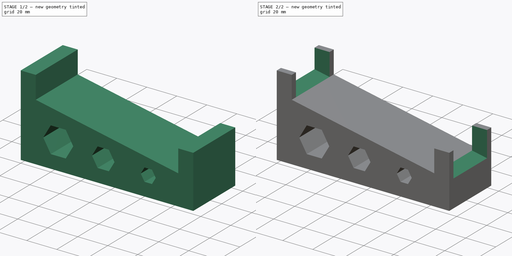
[diagram: build sequence overview — one tinted view per stage of 2, left to right]
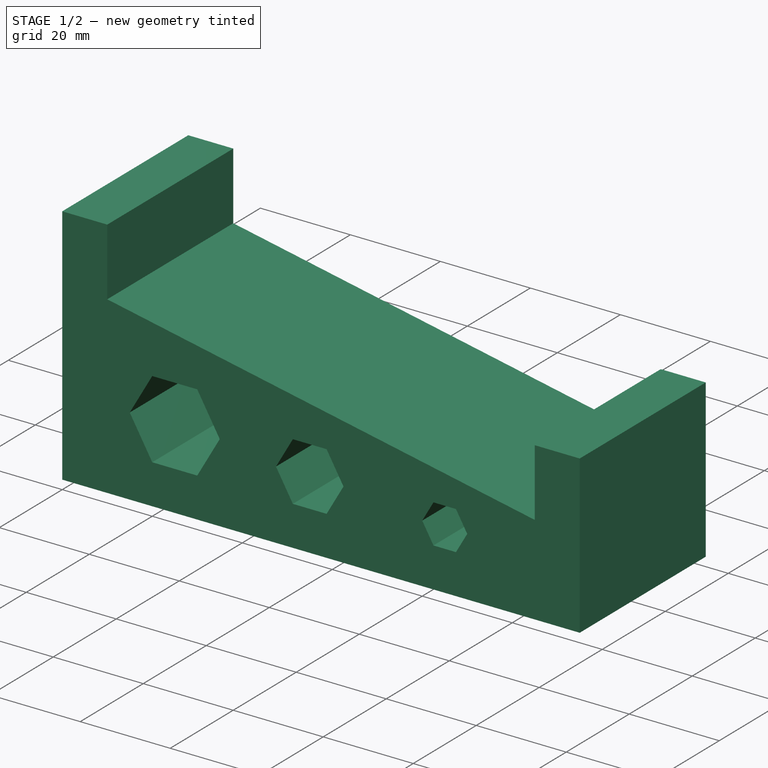
[diagram: stage 1 of 2 — iso view after this stage's code; geometry added in this stage tinted green]
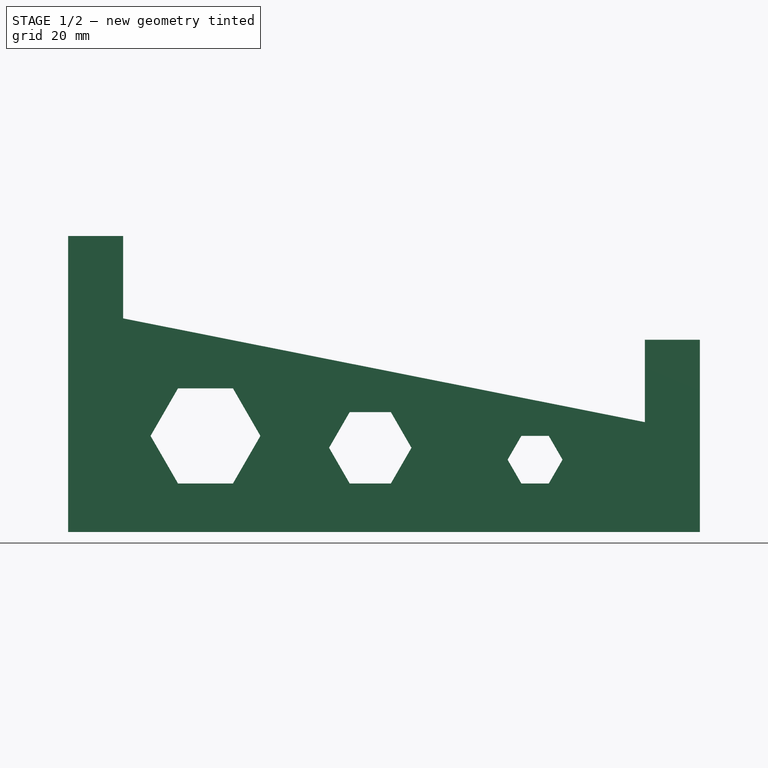
[diagram: stage 1 of 2 — front view after this stage's code; geometry added in this stage tinted green]
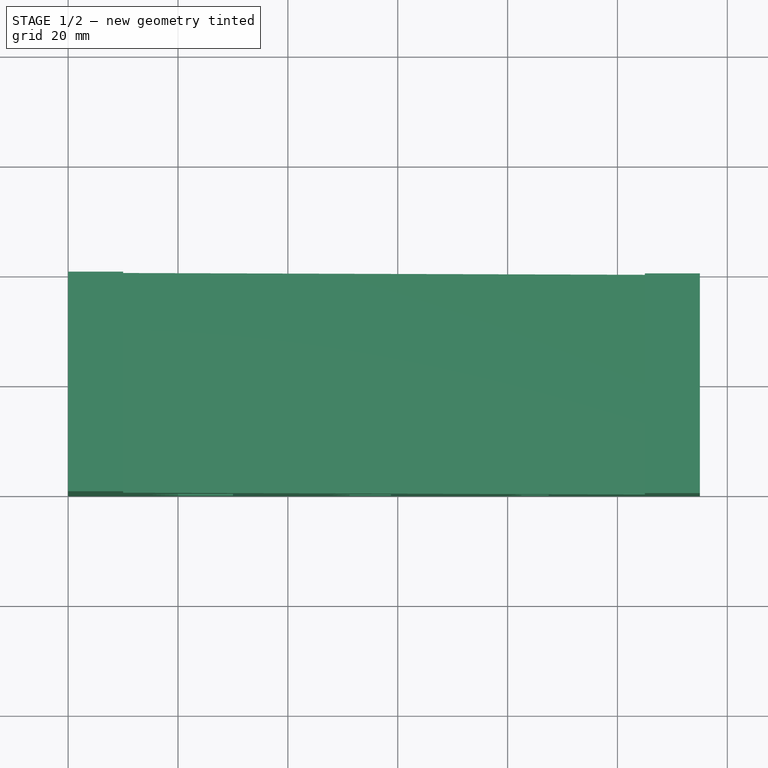
[diagram: stage 1 of 2 — top view after this stage's code; geometry added in this stage tinted green]
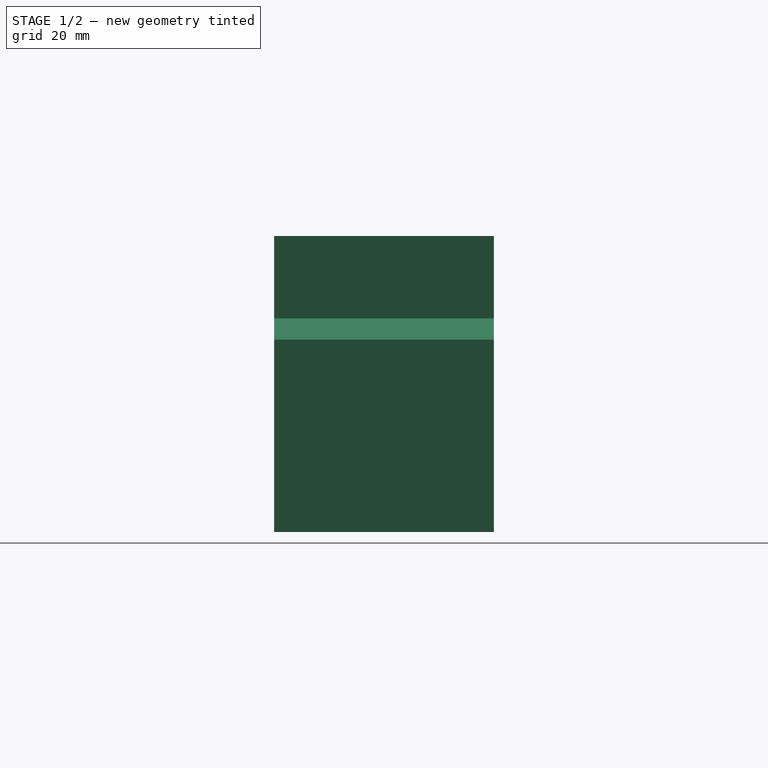
[diagram: stage 1 of 2 — right view after this stage's code; geometry added in this stage tinted green]
FCSTD DOCUMENT  (FreeCAD 0.21R33668 +26 (Git))
Label: stand
License: All rights reserved
LicenseURL: https://en.wikipedia.org/wiki/All_rights_reserved
objects: Sketcher::SketchObject×2, PartDesign::Pad×1, PartDesign::Pocket×1, PartDesign::Body×1
note: 7 computed .brp shape members not serialized (recipe doc carries the construction recipe); baked Part::Feature solids carry a one-line shape summary decoded from their .brp

FEATURE [Sketcher::SketchObject] Sketch
  FullyConstrained = true
  MapMode = 5
  Placement = pos=(0,0,0) rot=(1,0,0;1.5708rad)
  Support = -> [XZ_Plane]
  sketch-geometry (29):
    g0: LineSegment StartX=0 StartY=0 StartZ=0 EndX=0 EndY=53.8967 EndZ=0
    g1: LineSegment StartX=0 StartY=53.8967 StartZ=0 EndX=10 EndY=53.8967 EndZ=0
    g2: LineSegment StartX=10 StartY=53.8967 StartZ=0 EndX=10 EndY=38.8967 EndZ=0
    g3: LineSegment StartX=10 StartY=38.8967 StartZ=0 EndX=105 EndY=20 EndZ=0
    g4: LineSegment StartX=105 StartY=20 StartZ=0 EndX=105 EndY=35 EndZ=0
    g5: LineSegment StartX=105 StartY=35 StartZ=0 EndX=115 EndY=35 EndZ=0
    g6: LineSegment StartX=115 StartY=35 StartZ=0 EndX=115 EndY=0 EndZ=0
    g7: LineSegment StartX=115 StartY=0 StartZ=0 EndX=0 EndY=0 EndZ=0
    g8: LineSegment StartX=30 StartY=8.83975 StartZ=0 EndX=35 EndY=17.5 EndZ=0
    g9: LineSegment StartX=35 StartY=17.5 StartZ=0 EndX=30 EndY=26.1603 EndZ=0
    g10: LineSegment StartX=30 StartY=26.1603 StartZ=0 EndX=20 EndY=26.1603 EndZ=0
    g11: LineSegment StartX=20 StartY=26.1603 StartZ=0 EndX=15 EndY=17.5 EndZ=0
    g12: LineSegment StartX=15 StartY=17.5 StartZ=0 EndX=20 EndY=8.83975 EndZ=0
    g13: LineSegment StartX=20 StartY=8.83975 StartZ=0 EndX=30 EndY=8.83975 EndZ=0
    g14: Circle CenterX=25 CenterY=17.5 CenterZ=0 NormalX=0 NormalY=0 NormalZ=1 AngleXU=0 Radius=10
    g15: LineSegment StartX=58.75 StartY=8.83975 StartZ=0 EndX=62.5 EndY=15.3349 EndZ=0
    g16: LineSegment StartX=62.5 StartY=15.3349 StartZ=0 EndX=58.75 EndY=21.8301 EndZ=0
    g17: LineSegment StartX=58.75 StartY=21.8301 StartZ=0 EndX=51.25 EndY=21.8301 EndZ=0
    g18: LineSegment StartX=51.25 StartY=21.8301 StartZ=0 EndX=47.5 EndY=15.3349 EndZ=0
    g19: LineSegment StartX=47.5 StartY=15.3349 StartZ=0 EndX=51.25 EndY=8.83975 EndZ=0
    g20: LineSegment StartX=51.25 StartY=8.83975 StartZ=0 EndX=58.75 EndY=8.83975 EndZ=0
    g21: Circle CenterX=55 CenterY=15.3349 CenterZ=0 NormalX=0 NormalY=0 NormalZ=1 AngleXU=0 Radius=7.5
    g22: LineSegment StartX=87.5 StartY=8.83975 StartZ=0 EndX=90 EndY=13.1699 EndZ=0
    g23: LineSegment StartX=90 StartY=13.1699 StartZ=0 EndX=87.5 EndY=17.5 EndZ=0
    g24: LineSegment StartX=87.5 StartY=17.5 StartZ=0 EndX=82.5 EndY=17.5 EndZ=0
    g25: LineSegment StartX=82.5 StartY=17.5 StartZ=0 EndX=80 EndY=13.1699 EndZ=0
    g26: LineSegment StartX=80 StartY=13.1699 StartZ=0 EndX=82.5 EndY=8.83975 EndZ=0
    g27: LineSegment StartX=82.5 StartY=8.83975 StartZ=0 EndX=87.5 EndY=8.83975 EndZ=0
    g28: Circle CenterX=85 CenterY=13.1699 CenterZ=0 NormalX=0 NormalY=0 NormalZ=1 AngleXU=0 Radius=5
  constraints (74):
    c: PointOnObject(g0,g-2)
    c: Coincident(g0,g1)
    c: Horizontal(g1)
    c: Coincident(g1,g2)
    c: Vertical(g2)
    c: Coincident(g2,g3)
    c: Coincident(g3,g4)
    c: Vertical(g4)
    c: Coincident(g4,g5)
    c: Horizontal(g5)
    c: Coincident(g5,g6)
    c: PointOnObject(g6,g-1)
    c: Vertical(g6)
    c: Coincident(g6,g7)
    c: Angle(g3,g-1) = 0.19635
    c: DistanceX(g2,g3) = 95
    c: DistanceX(g5,g5) = 10
    c: DistanceX(g1,g1) = 10
    c: DistanceY(g6,g3) = 20
    c: DistanceY(g4,g4) = 15
    c: DistanceY(g2,g2) = 15
    c: Coincident(g8,g9)
    c: Coincident(g9,g10)
    c: Coincident(g10,g11)
    c: Coincident(g11,g12)
    c: Coincident(g12,g13)
    c: Coincident(g13,g8)
    c: Equal(g8, g9-g13) x5
    c: PointOnObject(g8,g14)
    c: PointOnObject(g9,g14)
    c: PointOnObject(g10,g14)
    c: PointOnObject(g11,g14)
    c: PointOnObject(g12,g14)
    c: PointOnObject(g13,g14)
    c: Horizontal(g13)
    c: DistanceX(g0,g14) = 25
    c: Coincident(g0,g7)
    c: Coincident(g0,g-1)
    c: DistanceY(g0,g14) = 17.5
    c: Radius(g14) = 10
    c: Coincident(g15,g16)
    c: Coincident(g16,g17)
    c: Coincident(g17,g18)
    c: Coincident(g18,g19)
    c: Coincident(g19,g20)
    c: Coincident(g20,g15)
    c: Equal(g15, g16-g20) x5
    c: PointOnObject(g15,g21)
    c: PointOnObject(g16,g21)
    c: PointOnObject(g17,g21)
    c: PointOnObject(g18,g21)
    c: PointOnObject(g19,g21)
    c: PointOnObject(g20,g21)
    c: Horizontal(g20)
    c: DistanceY(g8,g19) = 0
    c: DistanceX(g14,g21) = 30
    c: Radius(g21) = 7.5
    c: Coincident(g22,g23)
    c: Coincident(g23,g24)
    c: Coincident(g24,g25)
    c: Coincident(g25,g26)
    c: Coincident(g26,g27)
    c: Coincident(g27,g22)
    c: Equal(g22, g23-g27) x5
    c: PointOnObject(g22,g28)
    c: PointOnObject(g23,g28)
    c: PointOnObject(g24,g28)
    c: PointOnObject(g25,g28)
    c: PointOnObject(g26,g28)
    c: PointOnObject(g27,g28)
    c: Horizontal(g27)
    c: DistanceY(g26,g15) = 0
    c: Radius(g28) = 5
    c: DistanceX(g21,g28) = 30
FEATURE [PartDesign::Pad] Pad
  Direction = (0,-1,-2e-16)
  Length = 40
  Length2 = 10
  Placement = pos=(0,0,0) rot=(1,0,0;1.5708rad)
  Profile = -> Sketch
  ReferenceAxis = -> Sketch [N_Axis]
  Type = 0
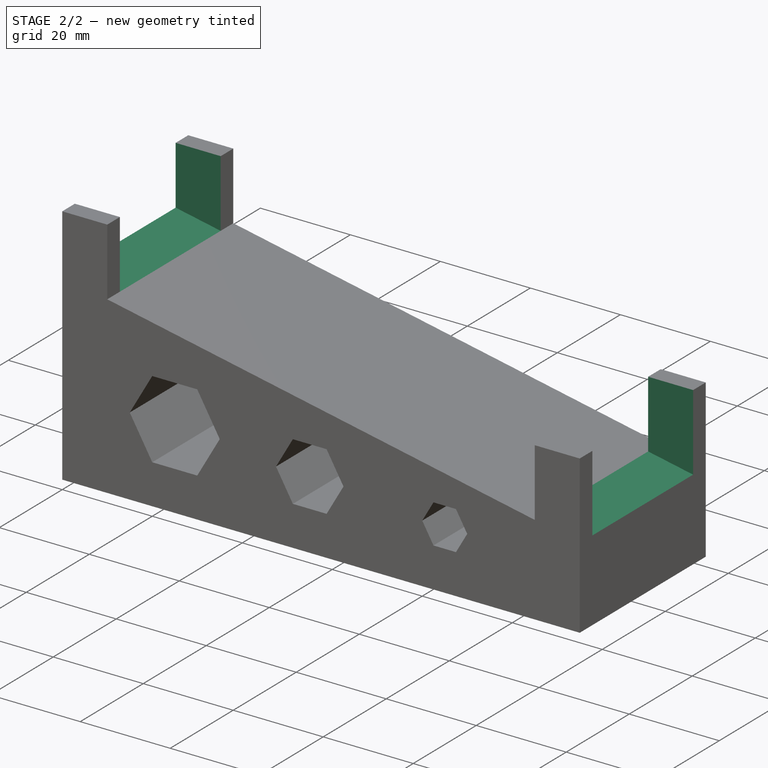
[diagram: stage 2 of 2 — iso view after this stage's code; geometry added in this stage tinted green]
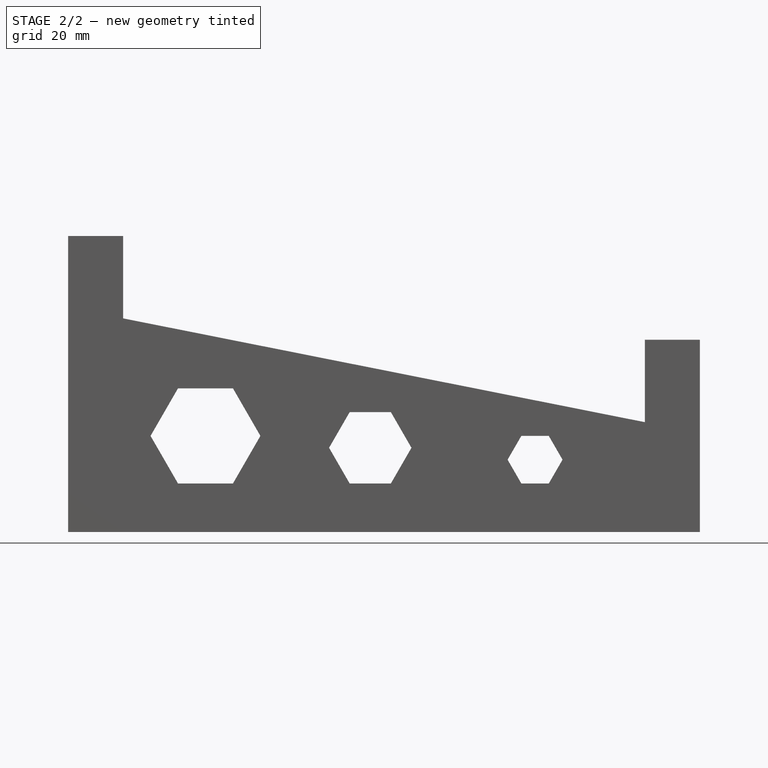
[diagram: stage 2 of 2 — front view after this stage's code; geometry added in this stage tinted green]
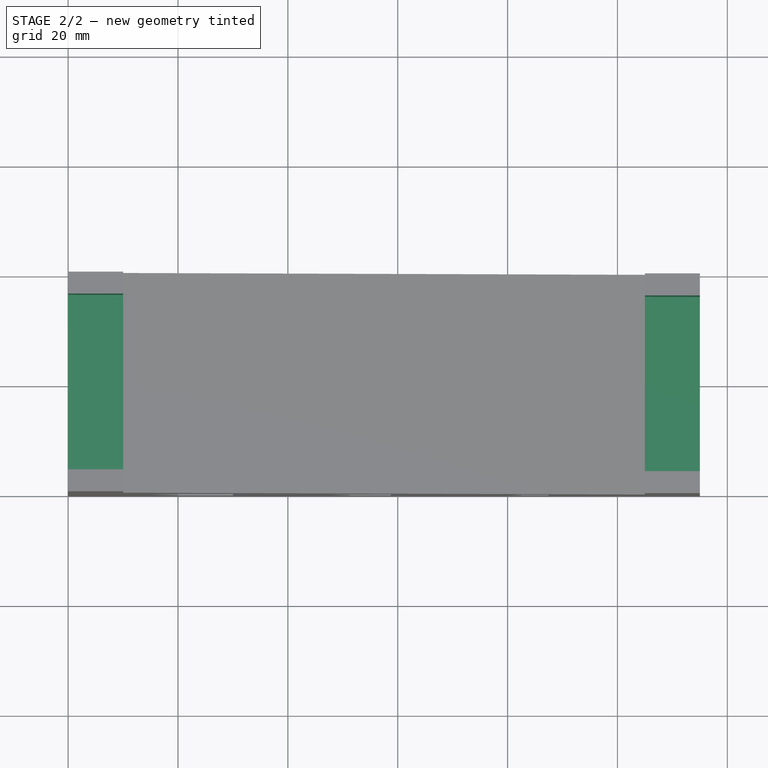
[diagram: stage 2 of 2 — top view after this stage's code; geometry added in this stage tinted green]
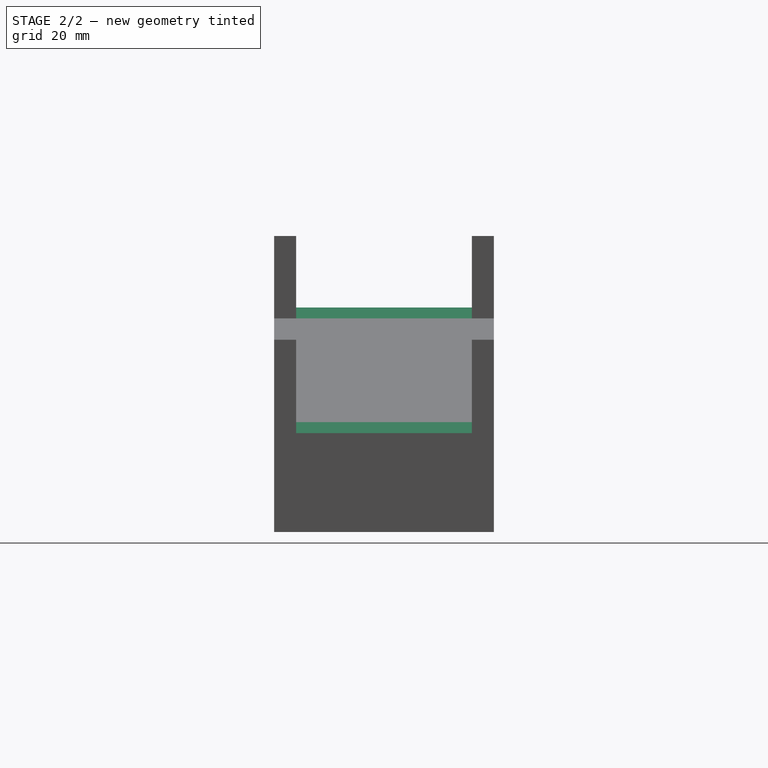
[diagram: stage 2 of 2 — right view after this stage's code; geometry added in this stage tinted green]
FEATURE [Sketcher::SketchObject] Sketch001
  FullyConstrained = false
  MapMode = 5
  Placement = pos=(7.82316,-8.7e-15,39.3297) rot=(0.098017,0,0.995185;3.14159rad)
  Support = -> [Pad]
  sketch-geometry (4):
    g0: LineSegment StartX=-127.643 StartY=36 StartZ=0 EndX=14.4213 EndY=36 EndZ=0
    g1: LineSegment StartX=14.4213 StartY=36 StartZ=0 EndX=14.4213 EndY=4 EndZ=0
    g2: LineSegment StartX=14.4213 StartY=4 StartZ=0 EndX=-127.643 EndY=4 EndZ=0
    g3: LineSegment StartX=-127.643 StartY=4 StartZ=0 EndX=-127.643 EndY=36 EndZ=0
  constraints (10):
    c: Coincident(g0,g1)
    c: Coincident(g1,g2)
    c: Coincident(g2,g3)
    c: Coincident(g3,g0)
    c: Horizontal(g0)
    c: Horizontal(g2)
    c: Vertical(g1)
    c: Vertical(g3)
    c: DistanceY(g3,g3) = 32
    c: DistanceY(g-1,g1) = 4
FEATURE [PartDesign::Pocket] Pocket
  BaseFeature = -> Pad
  Direction = (-0.19509,2e-16,-0.980785)
  Length = 5
  Length2 = 5
  Placement = pos=(0,0,0) rot=(1,0,0;1.5708rad)
  Profile = -> Sketch001
  ReferenceAxis = -> Sketch001 [N_Axis]
  Reversed = true
  Type = 1
FEATURE [PartDesign::Body] Body  label="Cuerpo"
  Group = -> [Sketch,Pad,Sketch001,Pocket]
  Origin = -> Origin
  Tip = -> Pocket
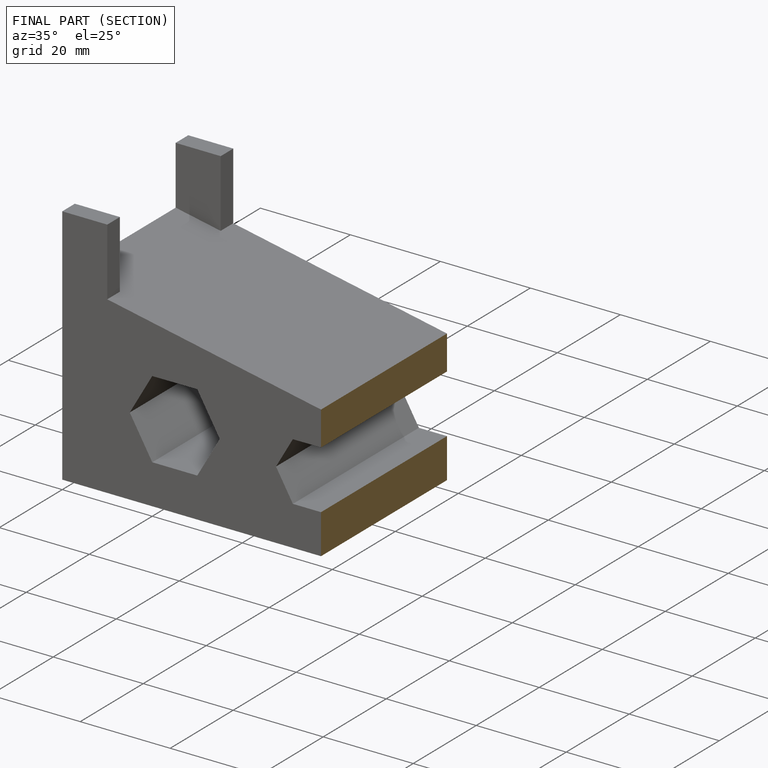
[diagram: finished part — half-section view (interior)]
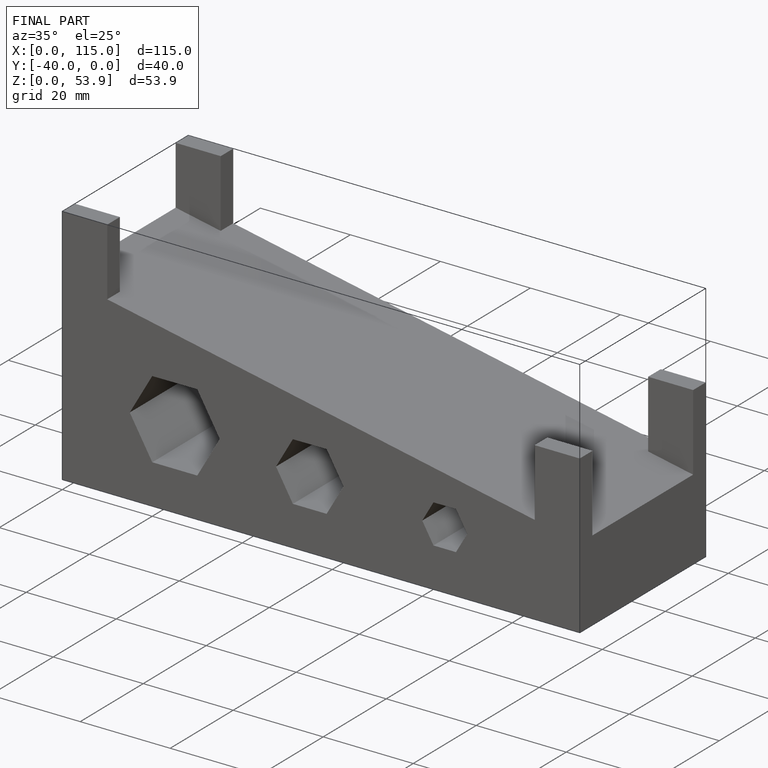
[diagram: finished part — iso view with bounding-box wireframe]
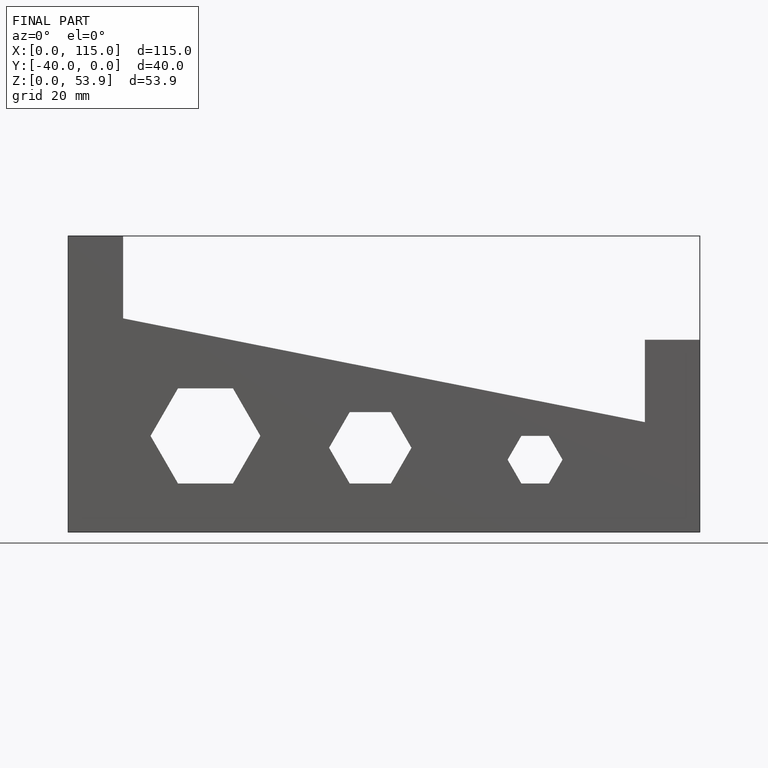
[diagram: finished part — front view with bounding-box wireframe]
